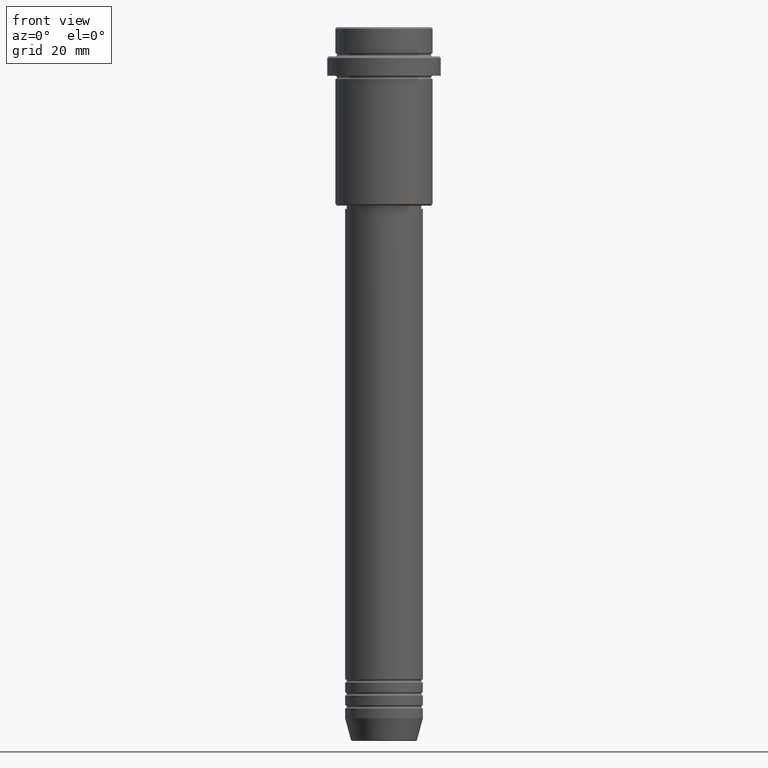
[diagram: clean part render]
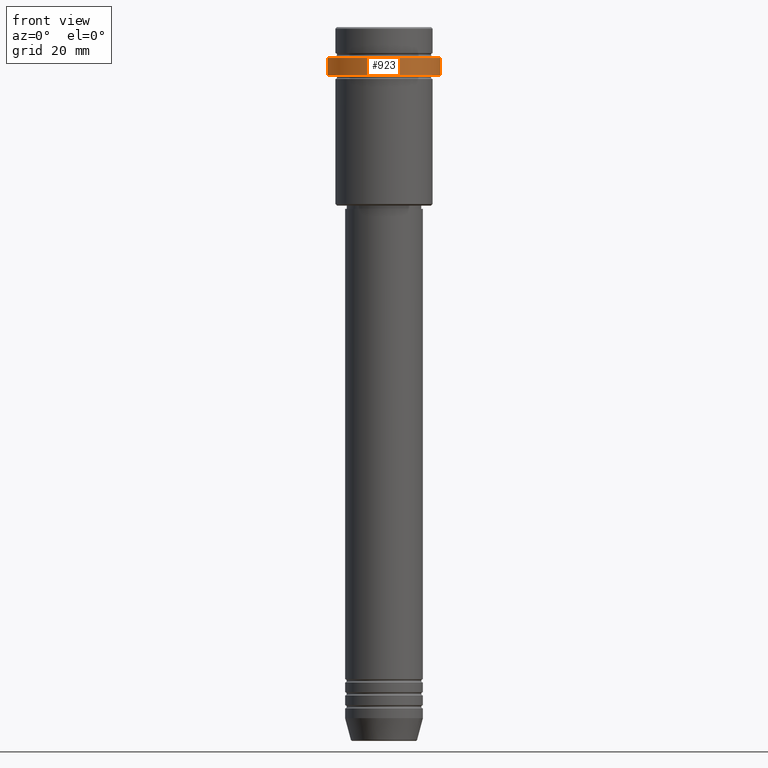
[diagram: same view with one face highlighted and labeled with its STEP entity id]
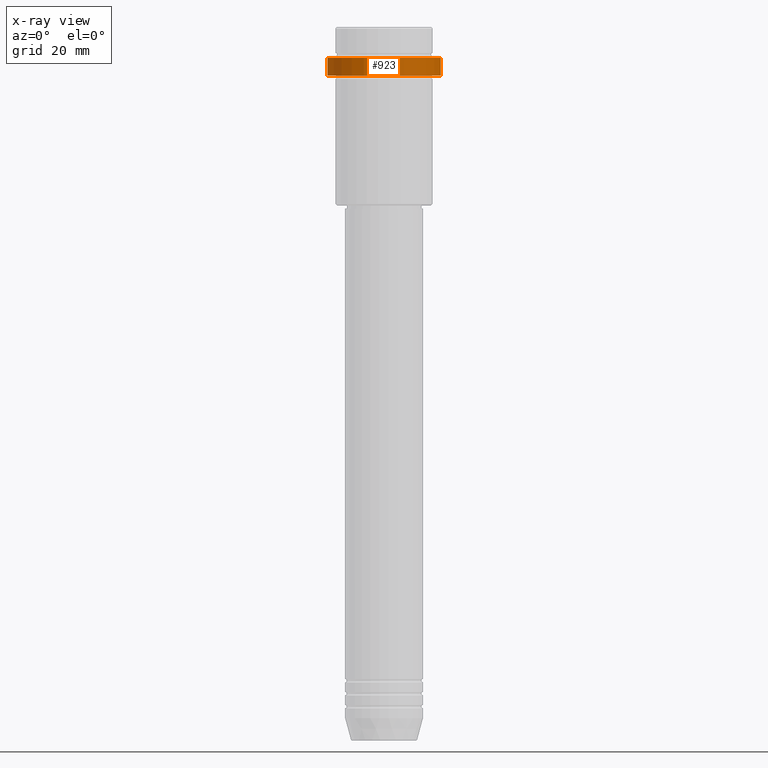
[diagram: x-ray of the same camera — body ghosted, the highlighted face saturated]
A machine part, front view. The second image highlights one B-rep face of the part: STEP entity #923.
The next image is the same camera in x-ray: the body ghosted, the highlighted face saturated — about 0% of this face is hidden behind the body in this view.
In plain terms, the highlighted cylindrical surface (partial cylindrical patch) has radius 17.5 mm, axis along (-0, -0, 1).
Its self-contained STEP definition (entity closure, byte-faithful):
#48 = CIRCLE ( 'NONE', #1134, 17.50000000000000000 ) ;
#54 = DIRECTION ( 'NONE',  ( 1.000000000000000000, 0.000000000000000000, 0.000000000000000000 ) ) ;
#102 = CARTESIAN_POINT ( 'NONE',  ( -17.50000000000000000, 2.143131898507868248E-15, -9.500000000000026645 ) ) ;
#104 = CIRCLE ( 'NONE', #646, 17.50000000000000000 ) ;
#126 = EDGE_CURVE ( 'NONE', #1180, #769, #1022, .T. ) ;
#233 = VERTEX_POINT ( 'NONE', #634 ) ;
#237 = EDGE_CURVE ( 'NONE', #769, #863, #48, .T. ) ;
#270 = ORIENTED_EDGE ( 'NONE', *, *, #837, .F. ) ;
#306 = CARTESIAN_POINT ( 'NONE',  ( 0.000000000000000000, 0.000000000000000000, -9.500000000000026645 ) ) ;
#319 = LINE ( 'NONE', #1381, #802 ) ;
#405 = DIRECTION ( 'NONE',  ( -0.000000000000000000, -0.000000000000000000, 1.000000000000000000 ) ) ;
#477 = DIRECTION ( 'NONE',  ( 1.000000000000000000, 0.000000000000000000, 0.000000000000000000 ) ) ;
#497 = CARTESIAN_POINT ( 'NONE',  ( 0.000000000000000000, 0.000000000000000000, -15.00000000000000000 ) ) ;
#604 = EDGE_LOOP ( 'NONE', ( #270, #1208, #896, #808 ) ) ;
#610 = CARTESIAN_POINT ( 'NONE',  ( 17.50000000000000000, 0.000000000000000000, 0.000000000000000000 ) ) ;
#615 = DIRECTION ( 'NONE',  ( 1.000000000000000000, 0.000000000000000000, 0.000000000000000000 ) ) ;
#634 = CARTESIAN_POINT ( 'NONE',  ( -17.50000000000000000, 2.143131898507868248E-15, -15.00000000000000000 ) ) ;
#640 = CARTESIAN_POINT ( 'NONE',  ( 17.50000000000000000, 0.000000000000000000, -9.500000000000026645 ) ) ;
#646 = AXIS2_PLACEMENT_3D ( 'NONE', #497, #1123, #54 ) ;
#655 = CARTESIAN_POINT ( 'NONE',  ( 17.50000000000000000, 0.000000000000000000, -15.00000000000000000 ) ) ;
#694 = CYLINDRICAL_SURFACE ( 'NONE', #1048, 17.50000000000000000 ) ;
#769 = VERTEX_POINT ( 'NONE', #640 ) ;
#802 = VECTOR ( 'NONE', #405, 1000.000000000000000 ) ;
#808 = ORIENTED_EDGE ( 'NONE', *, *, #237, .T. ) ;
#823 = EDGE_CURVE ( 'NONE', #233, #1180, #104, .T. ) ;
#837 = EDGE_CURVE ( 'NONE', #233, #863, #319, .T. ) ;
#863 = VERTEX_POINT ( 'NONE', #102 ) ;
#888 = FACE_OUTER_BOUND ( 'NONE', #604, .T. ) ;
#896 = ORIENTED_EDGE ( 'NONE', *, *, #126, .T. ) ;
#923 = ADVANCED_FACE ( 'NONE', ( #888 ), #694, .T. ) ;
#1022 = LINE ( 'NONE', #610, #1185 ) ;
#1037 = DIRECTION ( 'NONE',  ( -0.000000000000000000, -0.000000000000000000, 1.000000000000000000 ) ) ;
#1048 = AXIS2_PLACEMENT_3D ( 'NONE', #1212, #1119, #477 ) ;
#1119 = DIRECTION ( 'NONE',  ( -0.000000000000000000, -0.000000000000000000, 1.000000000000000000 ) ) ;
#1123 = DIRECTION ( 'NONE',  ( -0.000000000000000000, -0.000000000000000000, 1.000000000000000000 ) ) ;
#1134 = AXIS2_PLACEMENT_3D ( 'NONE', #306, #1296, #615 ) ;
#1180 = VERTEX_POINT ( 'NONE', #655 ) ;
#1185 = VECTOR ( 'NONE', #1037, 1000.000000000000000 ) ;
#1208 = ORIENTED_EDGE ( 'NONE', *, *, #823, .T. ) ;
#1212 = CARTESIAN_POINT ( 'NONE',  ( 0.000000000000000000, 0.000000000000000000, 0.000000000000000000 ) ) ;
#1296 = DIRECTION ( 'NONE',  ( 0.000000000000000000, 0.000000000000000000, -1.000000000000000000 ) ) ;
#1381 = CARTESIAN_POINT ( 'NONE',  ( -17.50000000000000000, 2.143131898507868248E-15, 0.000000000000000000 ) ) ;